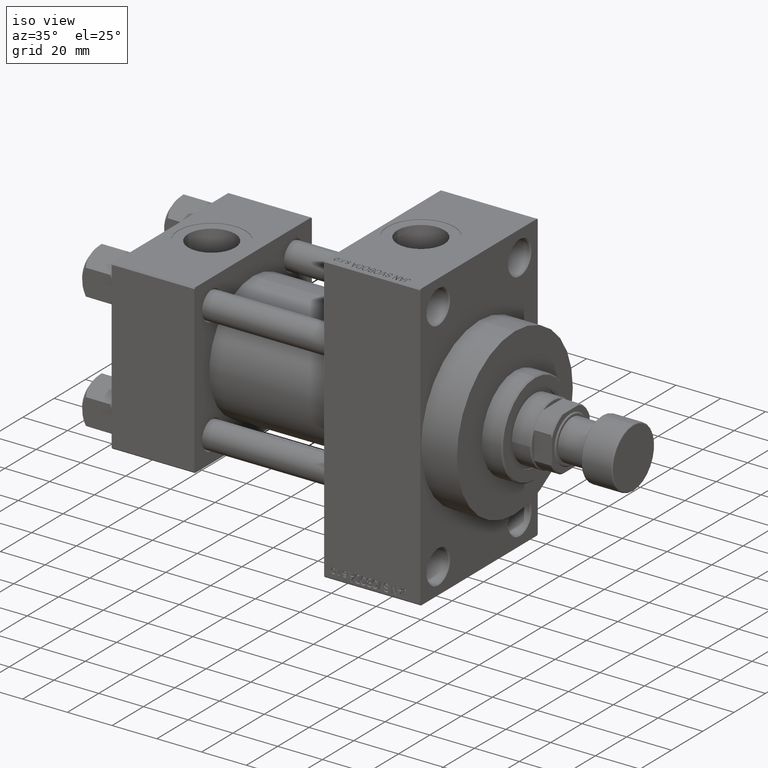
[diagram: clean part render]
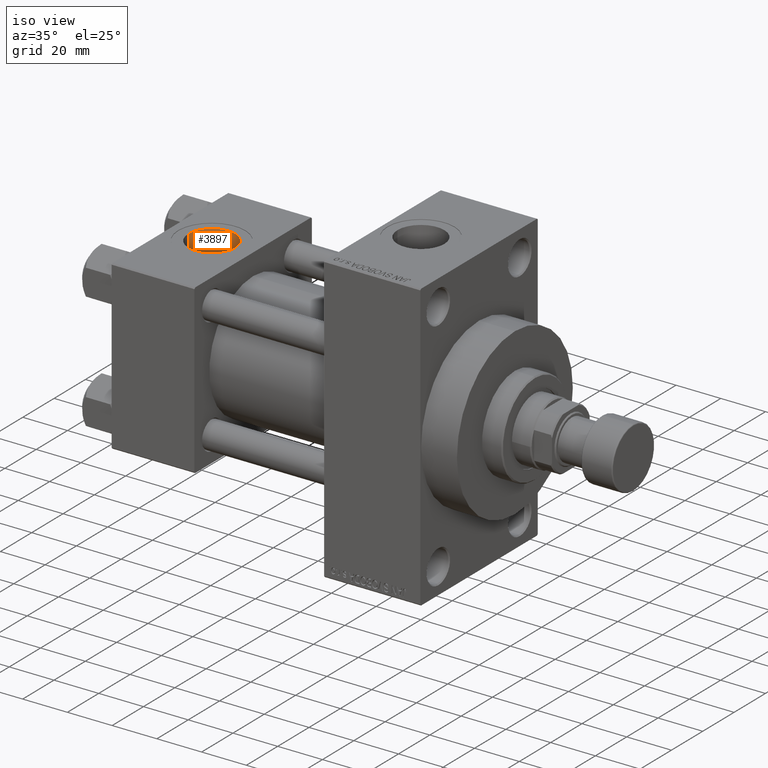
[diagram: same view with one face highlighted and labeled with its STEP entity id]
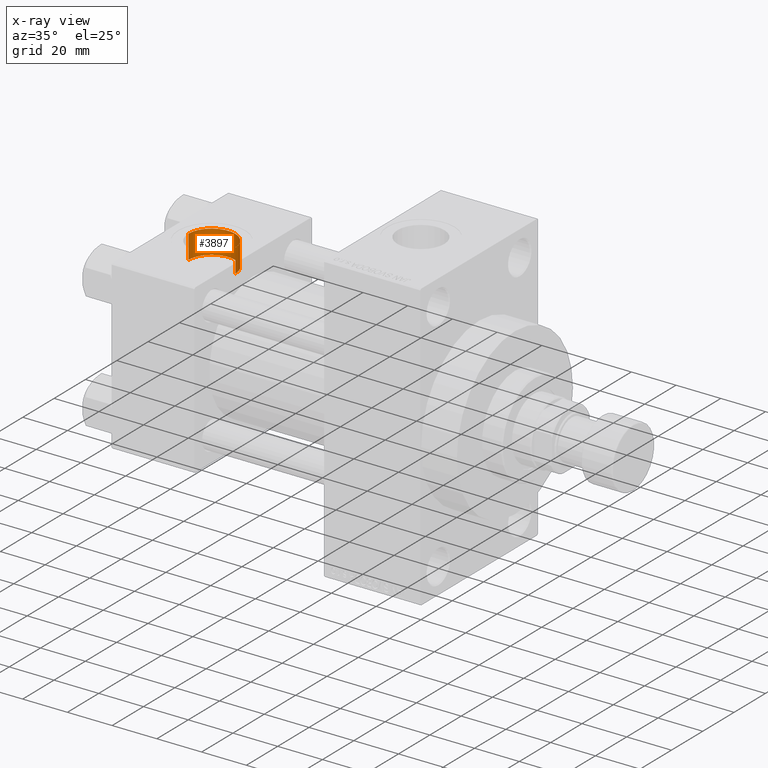
[diagram: x-ray of the same camera — body ghosted, the highlighted face saturated]
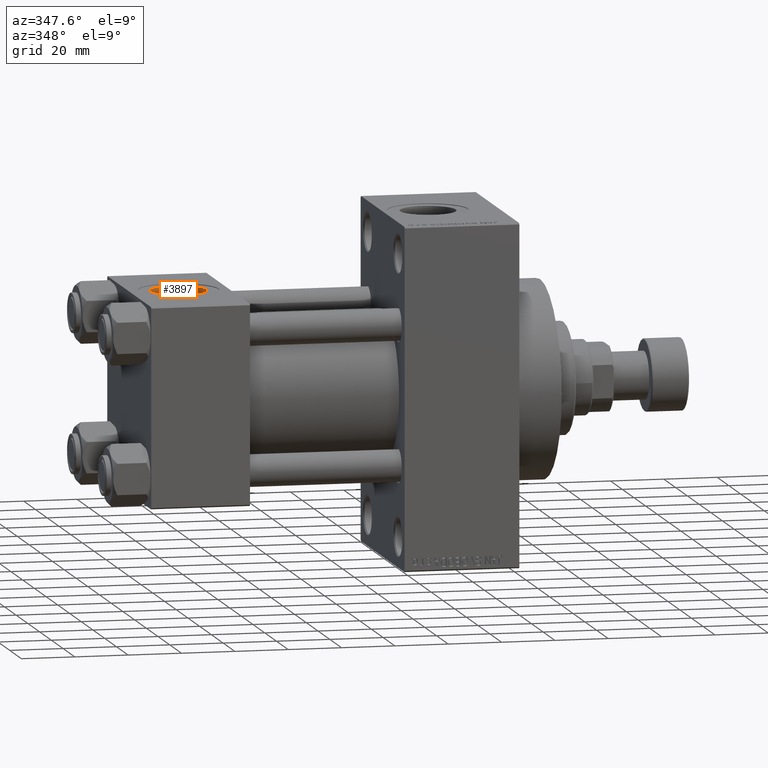
[diagram: same view with one face highlighted and labeled with its STEP entity id]
A machine part, iso view. The second image highlights one B-rep face of the part: STEP entity #3897.
The next image is the same camera in x-ray: the body ghosted, the highlighted face saturated — about 0% of this face is hidden behind the body in this view.
A second angle (auxiliary view) of the same face is appended — the face is thin or edge-on in the first view.
In plain terms, the highlighted cylindrical surface (edge-blend (fillet) strip) has radius 10.48 mm, axis along (0, 0, 1).
Its self-contained STEP definition (entity closure, byte-faithful):
#85 = CIRCLE ( 'NONE', #6246, 10.48000000000000043 ) ;
#2089 = CARTESIAN_POINT ( 'NONE',  ( 28.98000000000000043, -5.204170427930421283E-15, 37.29999999999999716 ) ) ;
#2924 = DIRECTION ( 'NONE',  ( -0.000000000000000000, -0.000000000000000000, 1.000000000000000000 ) ) ;
#3156 = CYLINDRICAL_SURFACE ( 'NONE', #47361, 10.48000000000000043 ) ;
#3478 = CIRCLE ( 'NONE', #15016, 10.48000000000000043 ) ;
#3622 = ORIENTED_EDGE ( 'NONE', *, *, #27631, .T. ) ;
#3630 = VERTEX_POINT ( 'NONE', #15029 ) ;
#3890 = CARTESIAN_POINT ( 'NONE',  ( 8.019999999999999574, -3.920740582423995006E-15, 37.29999999999999716 ) ) ;
#3897 = ADVANCED_FACE ( 'NONE', ( #29184 ), #3156, .F. ) ;
#4622 = DIRECTION ( 'NONE',  ( 1.000000000000000000, 0.000000000000000000, 0.000000000000000000 ) ) ;
#4804 = VERTEX_POINT ( 'NONE', #3890 ) ;
#6086 = DIRECTION ( 'NONE',  ( 1.000000000000000000, 0.000000000000000000, 0.000000000000000000 ) ) ;
#6246 = AXIS2_PLACEMENT_3D ( 'NONE', #11626, #26799, #4622 ) ;
#7734 = ORIENTED_EDGE ( 'NONE', *, *, #40433, .T. ) ;
#7777 = VERTEX_POINT ( 'NONE', #2089 ) ;
#10494 = EDGE_LOOP ( 'NONE', ( #38574, #45406, #3622, #7734 ) ) ;
#11530 = CARTESIAN_POINT ( 'NONE',  ( 8.019999999999999574, -3.920740582423995006E-15, 26.69999999999999929 ) ) ;
#11626 = CARTESIAN_POINT ( 'NONE',  ( 18.50000000000000000, -5.204170427930421283E-15, 26.69999999999999929 ) ) ;
#15016 = AXIS2_PLACEMENT_3D ( 'NONE', #25287, #17822, #32511 ) ;
#15029 = CARTESIAN_POINT ( 'NONE',  ( 28.98000000000000043, -5.204170427930421283E-15, 26.69999999999999929 ) ) ;
#15630 = DIRECTION ( 'NONE',  ( -0.000000000000000000, -0.000000000000000000, 1.000000000000000000 ) ) ;
#17703 = VERTEX_POINT ( 'NONE', #47662 ) ;
#17822 = DIRECTION ( 'NONE',  ( 0.000000000000000000, 0.000000000000000000, 1.000000000000000000 ) ) ;
#17859 = CARTESIAN_POINT ( 'NONE',  ( 18.50000000000000000, -5.204170427930421283E-15, 26.69999999999999929 ) ) ;
#19231 = LINE ( 'NONE', #38024, #47128 ) ;
#21682 = EDGE_CURVE ( 'NONE', #3630, #17703, #85, .T. ) ;
#23528 = LINE ( 'NONE', #11530, #40117 ) ;
#25287 = CARTESIAN_POINT ( 'NONE',  ( 18.50000000000000000, -5.204170427930421283E-15, 37.29999999999999716 ) ) ;
#26172 = EDGE_CURVE ( 'NONE', #17703, #4804, #23528, .T. ) ;
#26799 = DIRECTION ( 'NONE',  ( 0.000000000000000000, 0.000000000000000000, 1.000000000000000000 ) ) ;
#27631 = EDGE_CURVE ( 'NONE', #3630, #7777, #19231, .T. ) ;
#29184 = FACE_OUTER_BOUND ( 'NONE', #10494, .T. ) ;
#32511 = DIRECTION ( 'NONE',  ( 1.000000000000000000, 0.000000000000000000, 0.000000000000000000 ) ) ;
#38024 = CARTESIAN_POINT ( 'NONE',  ( 28.98000000000000043, -5.204170427930421283E-15, 26.69999999999999929 ) ) ;
#38251 = DIRECTION ( 'NONE',  ( -0.000000000000000000, -0.000000000000000000, 1.000000000000000000 ) ) ;
#38574 = ORIENTED_EDGE ( 'NONE', *, *, #26172, .F. ) ;
#40117 = VECTOR ( 'NONE', #38251, 1000.000000000000000 ) ;
#40433 = EDGE_CURVE ( 'NONE', #7777, #4804, #3478, .T. ) ;
#45406 = ORIENTED_EDGE ( 'NONE', *, *, #21682, .F. ) ;
#47128 = VECTOR ( 'NONE', #15630, 1000.000000000000000 ) ;
#47361 = AXIS2_PLACEMENT_3D ( 'NONE', #17859, #2924, #6086 ) ;
#47662 = CARTESIAN_POINT ( 'NONE',  ( 8.019999999999999574, -3.920740582423995006E-15, 26.69999999999999929 ) ) ;